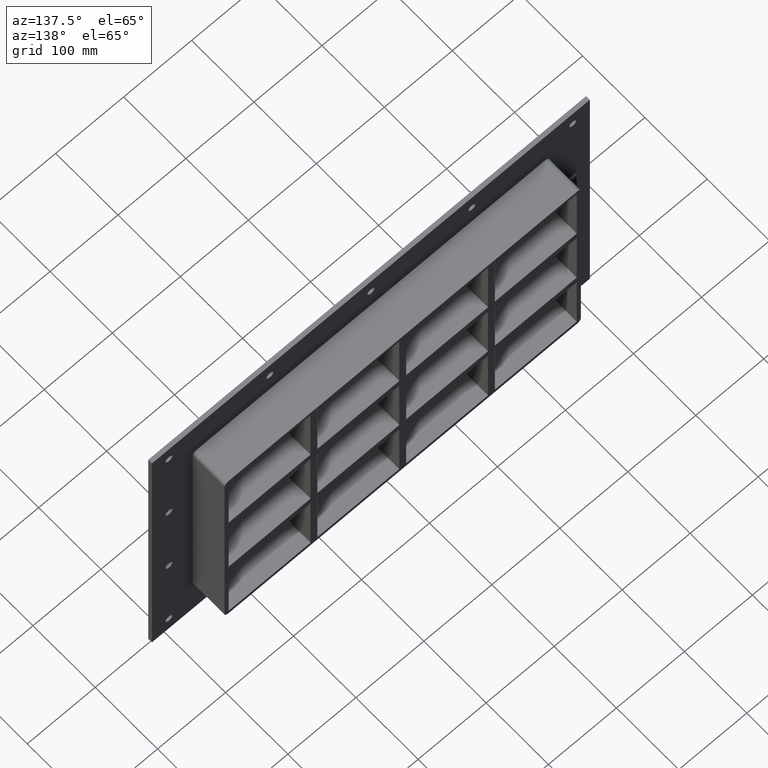
[diagram: clean part render]
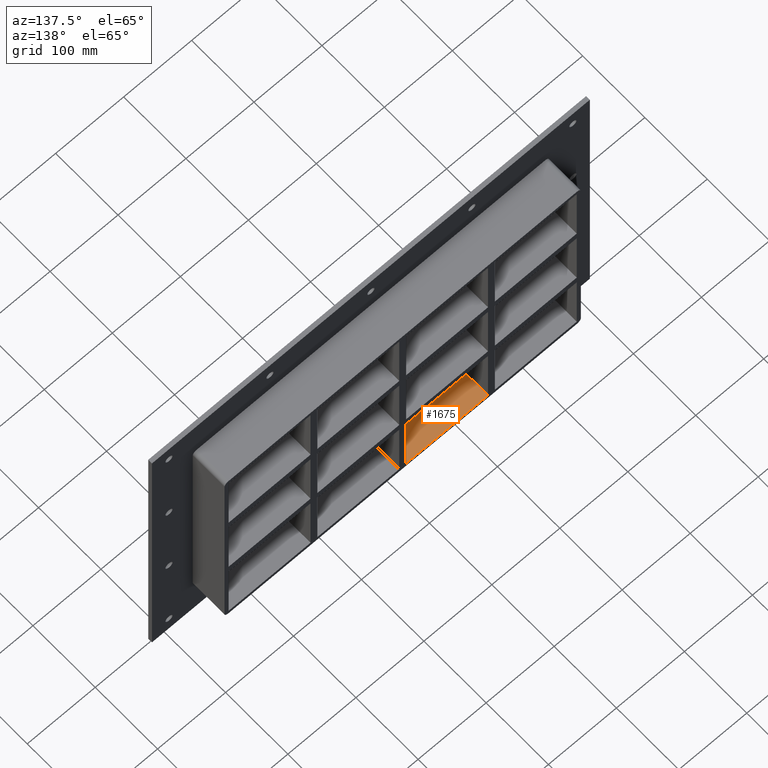
[diagram: same view with one face highlighted and labeled with its STEP entity id]
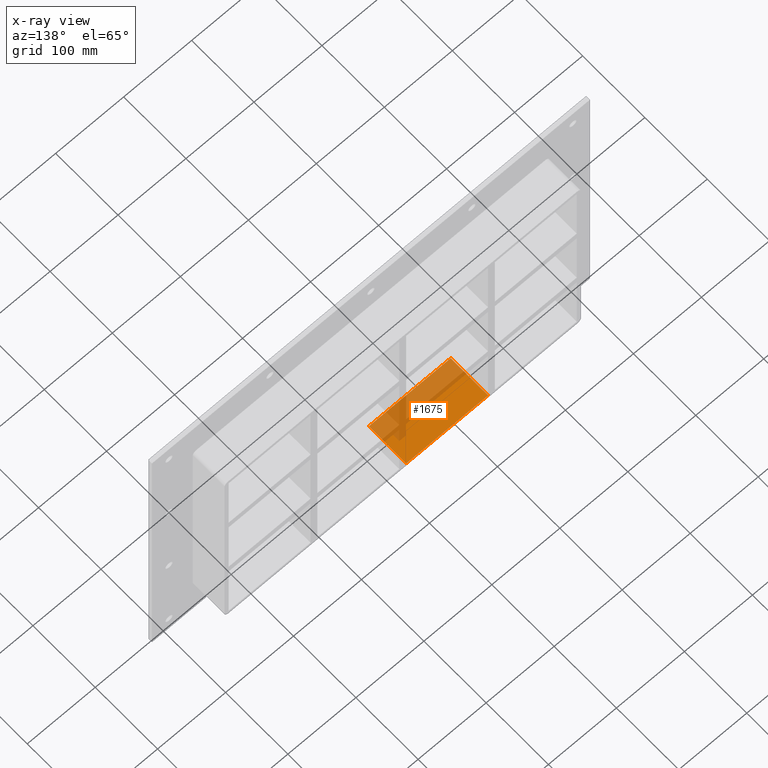
[diagram: x-ray of the same camera — body ghosted, the highlighted face saturated]
A machine part, auxiliary view. The second image highlights one B-rep face of the part: STEP entity #1675.
The next image is the same camera in x-ray: the body ghosted, the highlighted face saturated — about 44% of this face is hidden behind the body in this view.
In plain terms, the highlighted planar face has unit normal (0, 0, -1).
Its self-contained STEP definition (entity closure, byte-faithful):
#1318=CARTESIAN_POINT('',(-5.000000000002025,57.0,-163.50000000000006));
#1319=VERTEX_POINT('',#1318);
#1336=CARTESIAN_POINT('',(-125.49999999999272,57.0,-163.49999999998656));
#1337=VERTEX_POINT('',#1336);
#1344=CARTESIAN_POINT('',(-125.49999999999272,57.0,-163.50000000000006));
#1345=DIRECTION('',(1.0,0.0,0.0));
#1346=VECTOR('',#1345,120.49999999999071);
#1347=LINE('',#1344,#1346);
#1348=EDGE_CURVE('',#1337,#1319,#1347,.T.);
#1580=CARTESIAN_POINT('',(-5.000000000002025,-3.0,-163.50000000000006));
#1581=VERTEX_POINT('',#1580);
#1582=CARTESIAN_POINT('',(-5.000000000002025,-3.0,-163.50000000000006));
#1583=DIRECTION('',(0.0,1.0,0.0));
#1584=VECTOR('',#1583,60.000000000000007);
#1585=LINE('',#1582,#1584);
#1586=EDGE_CURVE('',#1581,#1319,#1585,.T.);
#1652=CARTESIAN_POINT('',(256.00000000000011,0.0,-163.50000000000006));
#1653=DIRECTION('',(0.0,0.0,-1.0));
#1654=DIRECTION('',(-1.0,0.0,0.0));
#1655=AXIS2_PLACEMENT_3D('',#1652,#1653,#1654);
#1656=PLANE('',#1655);
#1657=ORIENTED_EDGE('',*,*,#1586,.T.);
#1658=ORIENTED_EDGE('',*,*,#1348,.F.);
#1659=CARTESIAN_POINT('',(-125.49999999999272,-3.0,-163.49999999998653));
#1660=VERTEX_POINT('',#1659);
#1661=CARTESIAN_POINT('',(-125.49999999999272,57.000000000000007,-163.50000000000006));
#1662=DIRECTION('',(0.0,-1.0,0.0));
#1663=VECTOR('',#1662,60.000000000000007);
#1664=LINE('',#1661,#1663);
#1665=EDGE_CURVE('',#1337,#1660,#1664,.T.);
#1666=ORIENTED_EDGE('',*,*,#1665,.T.);
#1667=CARTESIAN_POINT('',(-5.000000000002018,-3.0,-163.50000000000006));
#1668=DIRECTION('',(-1.0,0.0,0.0));
#1669=VECTOR('',#1668,120.49999999999071);
#1670=LINE('',#1667,#1669);
#1671=EDGE_CURVE('',#1581,#1660,#1670,.T.);
#1672=ORIENTED_EDGE('',*,*,#1671,.F.);
#1673=EDGE_LOOP('',(#1657,#1658,#1666,#1672));
#1674=FACE_OUTER_BOUND('',#1673,.T.);
#1675=ADVANCED_FACE('',(#1674),#1656,.F.);